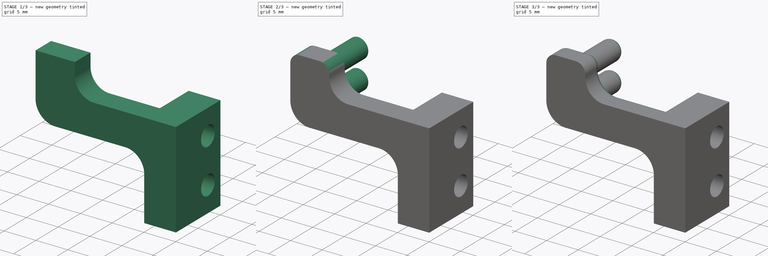
[diagram: build sequence overview — one tinted view per stage of 3, left to right]
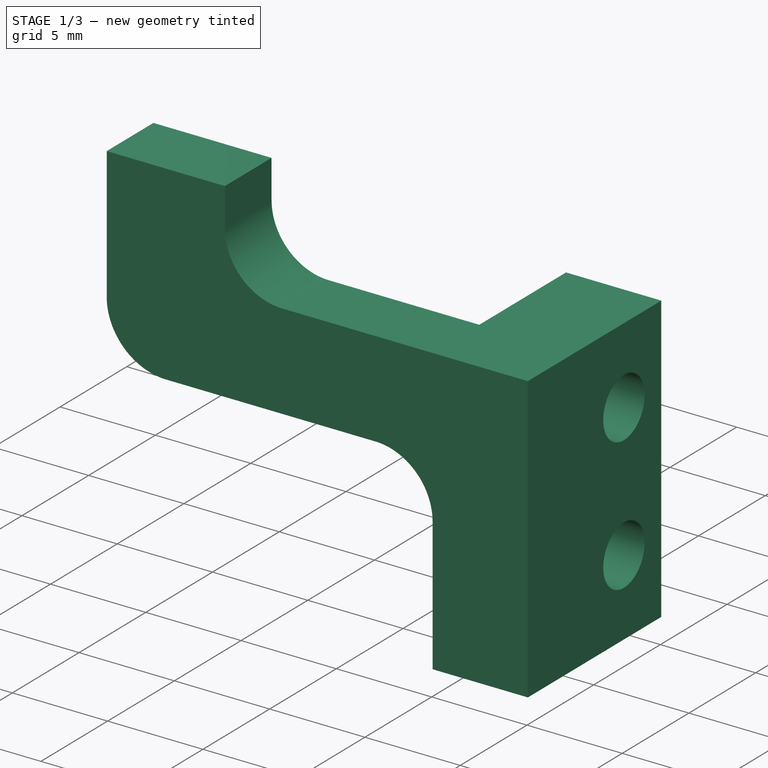
[diagram: stage 1 of 3 — iso view after this stage's code; geometry added in this stage tinted green]
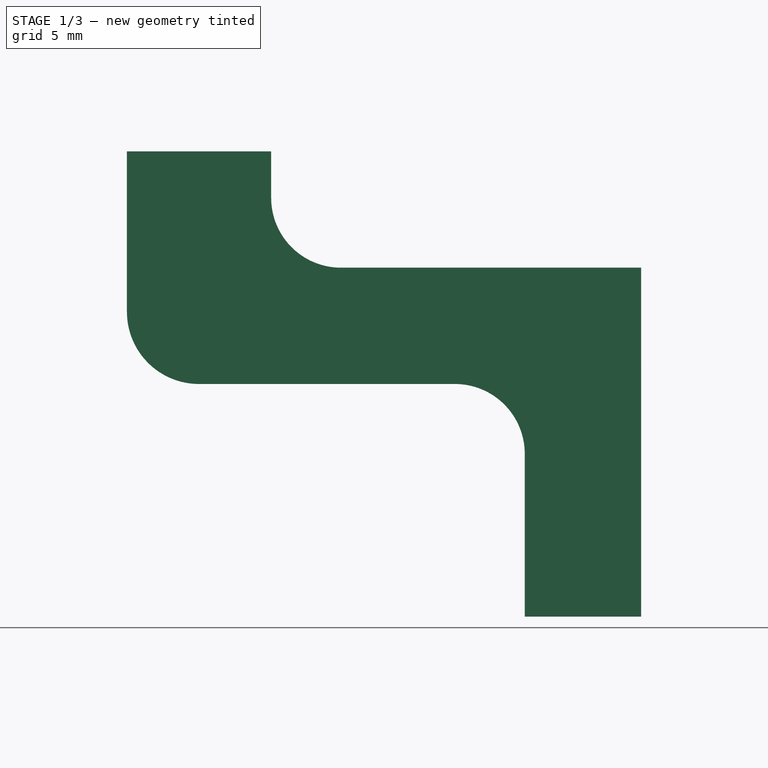
[diagram: stage 1 of 3 — front view after this stage's code; geometry added in this stage tinted green]
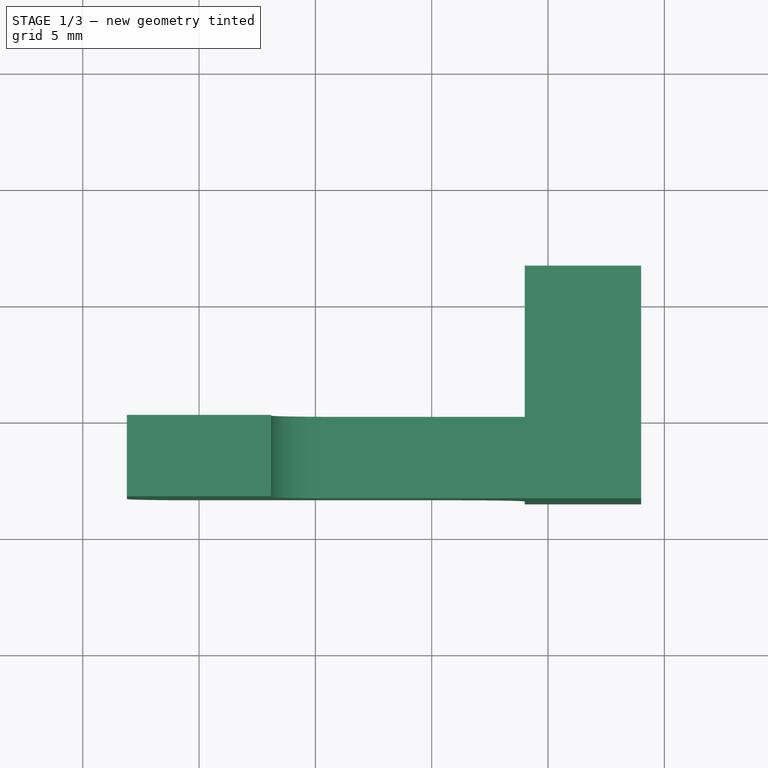
[diagram: stage 1 of 3 — top view after this stage's code; geometry added in this stage tinted green]
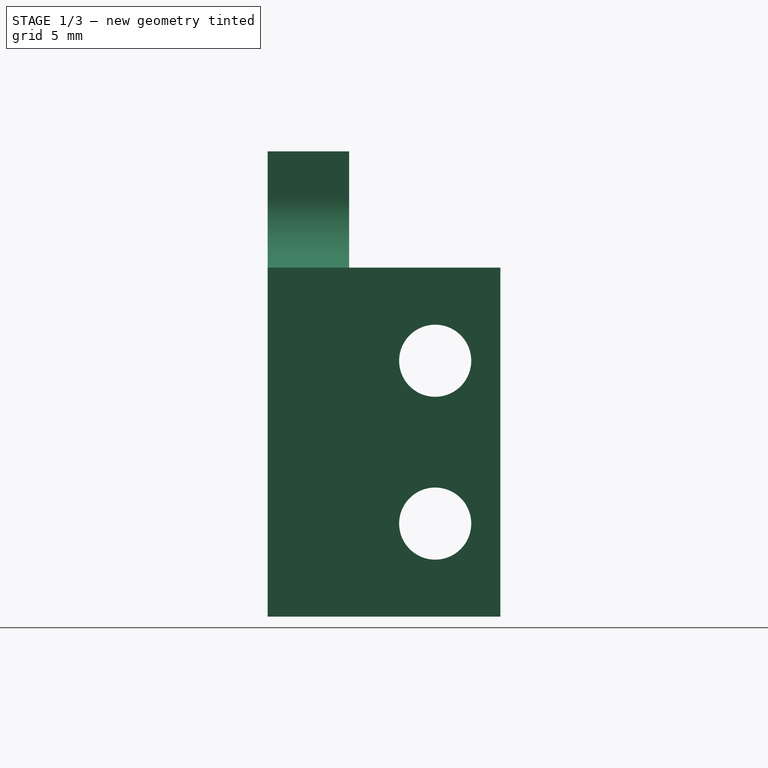
[diagram: stage 1 of 3 — right view after this stage's code; geometry added in this stage tinted green]
FCSTD DOCUMENT  (FreeCAD 0.19R24291 (Git))
Label: ri_tube-support02
License: All rights reserved
LicenseURL: http://en.wikipedia.org/wiki/All_rights_reserved
objects: Sketcher::SketchObject×4, PartDesign::Pad×3, PartDesign::Fillet×3, PartDesign::Pocket×1, PartDesign::Body×1, App::Part×1
note: 19 computed .brp shape members not serialized (recipe doc carries the construction recipe); baked Part::Feature solids carry a one-line shape summary decoded from their .brp

FEATURE [Sketcher::SketchObject] Sketch
  FullyConstrained = true
  MapMode = 5
  Placement = pos=(0,0,0) rot=(1,0,0;1.5708rad)
  Support = -> [XZ_Plane001]
  sketch-geometry (17):
    g0: LineSegment StartX=14 StartY=-8 StartZ=0 EndX=14 EndY=-15 EndZ=0
    g1: LineSegment StartX=14 StartY=-15 StartZ=0 EndX=19 EndY=-15 EndZ=0
    g2: LineSegment StartX=19 StartY=-15 StartZ=0 EndX=19 EndY=0 EndZ=0
    g3: LineSegment StartX=11 StartY=-5 StartZ=0 EndX=0 EndY=-5 EndZ=0
    g4: LineSegment StartX=-3.1 StartY=-1.9 StartZ=0 EndX=-3.1 EndY=5 EndZ=0
    g5: LineSegment StartX=-3.1 StartY=5 StartZ=0 EndX=3.1 EndY=5 EndZ=0
    g6: LineSegment StartX=3.1 StartY=5 StartZ=0 EndX=3.1 EndY=3 EndZ=0
    g7: LineSegment StartX=6.1 StartY=1.64e-14 StartZ=0 EndX=19 EndY=0 EndZ=0
    g8: GeomPoint X=0 Y=5 Z=0
    g9: GeomPoint X=0 Y=-5 Z=0
    g10: ArcOfCircle CenterX=11 CenterY=-8 CenterZ=0 NormalX=0 NormalY=0 NormalZ=1 AngleXU=0 Radius=3 StartAngle=0 EndAngle=1.5708
    g11: GeomPoint X=14 Y=-5 Z=0
    g12: ArcOfCircle CenterX=4e-16 CenterY=-1.9 CenterZ=0 NormalX=0 NormalY=0 NormalZ=1 AngleXU=0 Radius=3.1 StartAngle=3.14159 EndAngle=4.71239
    g13: GeomPoint X=-3.1 Y=-5 Z=0
    g14: GeomPoint X=3.1 Y=0 Z=0
    g15: ArcOfCircle CenterX=6.1 CenterY=3 CenterZ=0 NormalX=0 NormalY=0 NormalZ=1 AngleXU=0 Radius=3 StartAngle=3.14159 EndAngle=4.71239
    g16: GeomPoint X=3.1 Y=0 Z=0
  constraints (39):
    c: Vertical(g0)
    c: Coincident(g0,g1)
    c: Horizontal(g1)
    c: Coincident(g1,g2)
    c: PointOnObject(g2,g-1)
    c: Vertical(g2)
    c: DistanceY(g2,g2) = 15
    c: DistanceX(g1,g1) = 5
    c: DistanceX(g-1,g2) = 19
    c: Horizontal(g3)
    c: Vertical(g4)
    c: Coincident(g4,g5)
    c: Horizontal(g5)
    c: Coincident(g5,g6)
    c: PointOnObject(g14,g-1)
    c: Vertical(g6)
    c: Coincident(g7,g2)
    c: Vertical(g8,g9)
    c: Symmetric(g4,g5,g8)
    c: Symmetric(g8,g9,g-1)
    c: DistanceX(g5,g5) = 6.2
    c: DistanceY(g13,g4) = 10
    c: PointOnObject(g11,g3)
    c: PointOnObject(g11,g0)
    c: Tangent(g3,g10) = -1.5708
    c: Tangent(g0,g10) = 1.5708
    c: Radius(g10) = 3
    c: PointOnObject(g13,g4)
    c: Tangent(g3,g12) = 1.5708
    c: Tangent(g4,g12) = 1.5708
    c: PointOnObject(g14,g6)
    c: PointOnObject(g14,g7)
    c: Coincident(g3,g9)
    c: Horizontal(g13,g3)
    c: PointOnObject(g16,g6)
    c: PointOnObject(g16,g7)
    c: Tangent(g6,g15) = -1.5708
    c: Tangent(g7,g15) = -1.5708
    c: Radius(g15) = 3
FEATURE [PartDesign::Pad] Pad
  Direction = (1,1,1)
  Length = 3.5
  Length2 = 100
  Placement = pos=(0,0,0) rot=(1,0,0;1.5708rad)
  Profile = -> Sketch
  Refine = true
  Type = 0
FEATURE [Sketcher::SketchObject] Sketch001
  ExternalGeometry = -> [Pad]
  FullyConstrained = true
  MapMode = 5
  Placement = pos=(19,0,0) rot=(0.707107,0,0.707107;3.14159rad)
  Support = -> [Pad]
  expr: Constraints[17] = 5.6 / 2
  sketch-geometry (9):
    g0: Circle CenterX=-4 CenterY=-3.7 CenterZ=0 NormalX=0 NormalY=0 NormalZ=1 AngleXU=0 Radius=1.55
    g1: Circle CenterX=-11 CenterY=-3.7 CenterZ=0 NormalX=0 NormalY=0 NormalZ=1 AngleXU=0 Radius=1.55
    g2: GeomPoint X=-7.5 Y=-3.7 Z=0
    g3: GeomPoint X=-15 Y=-3.7 Z=0
    g4: LineSegment StartX=-15 StartY=0 StartZ=0 EndX=0 EndY=0 EndZ=0
    g5: LineSegment StartX=0 StartY=0 StartZ=0 EndX=0 EndY=-6.5 EndZ=0
    g6: LineSegment StartX=0 StartY=-6.5 StartZ=0 EndX=-15 EndY=-6.5 EndZ=0
    g7: LineSegment StartX=-15 StartY=-6.5 StartZ=0 EndX=-15 EndY=0 EndZ=0
    g8: GeomPoint X=-7.5 Y=-6.5 Z=0
  constraints (21):
    c: Equal(g0,g1)
    c: Horizontal(g0,g1)
    c: Diameter(g0) = 3.1
    c: Symmetric(g0,g1,g2)
    c: DistanceX(g1,g0) = 7
    c: Horizontal(g2,g3)
    c: Coincident(g4,g5)
    c: Coincident(g5,g6)
    c: Coincident(g6,g7)
    c: Coincident(g7,g4)
    c: Horizontal(g4)
    c: Horizontal(g6)
    c: Vertical(g5)
    c: Vertical(g7)
    c: Coincident(g4,g-3)
    c: PointOnObject(g5,g-2)
    c: DistanceY(g5,g-4) = 10
    c: DistanceY(g6,g3) = 2.8
    c: Symmetric(g6,g5,g8)
    c: Vertical(g2,g8)
    c: PointOnObject(g3,g7)
FEATURE [PartDesign::Pad] Pad001
  BaseFeature = -> Pad
  Direction = (1,1,1)
  Length = 10
  Length2 = 100
  Placement = pos=(0,0,0) rot=(1,0,0;1.5708rad)
  Profile = -> Sketch001
  Refine = true
  Type = 3
  UpToFace = -> Pad [Face2]
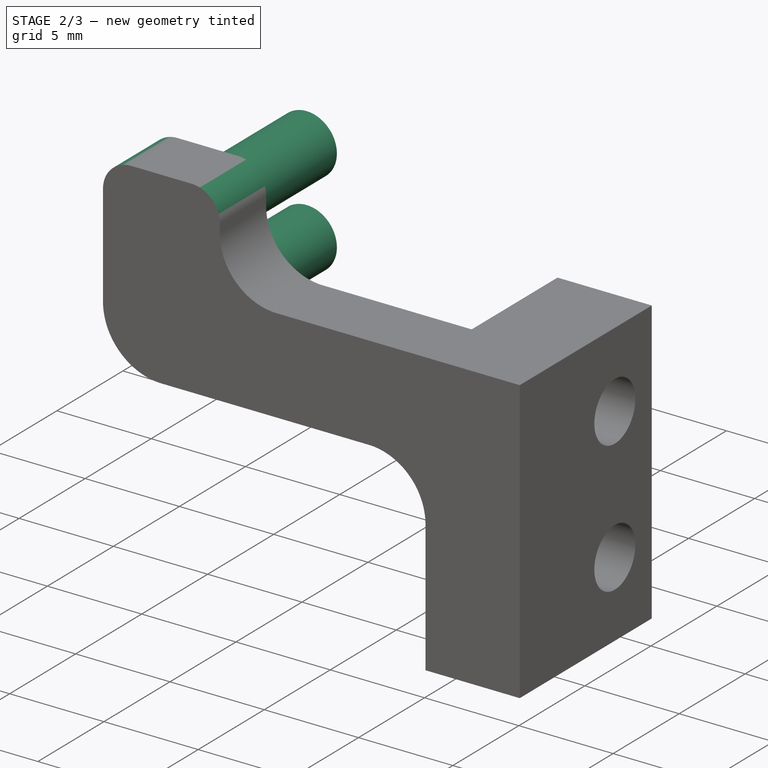
[diagram: stage 2 of 3 — iso view after this stage's code; geometry added in this stage tinted green]
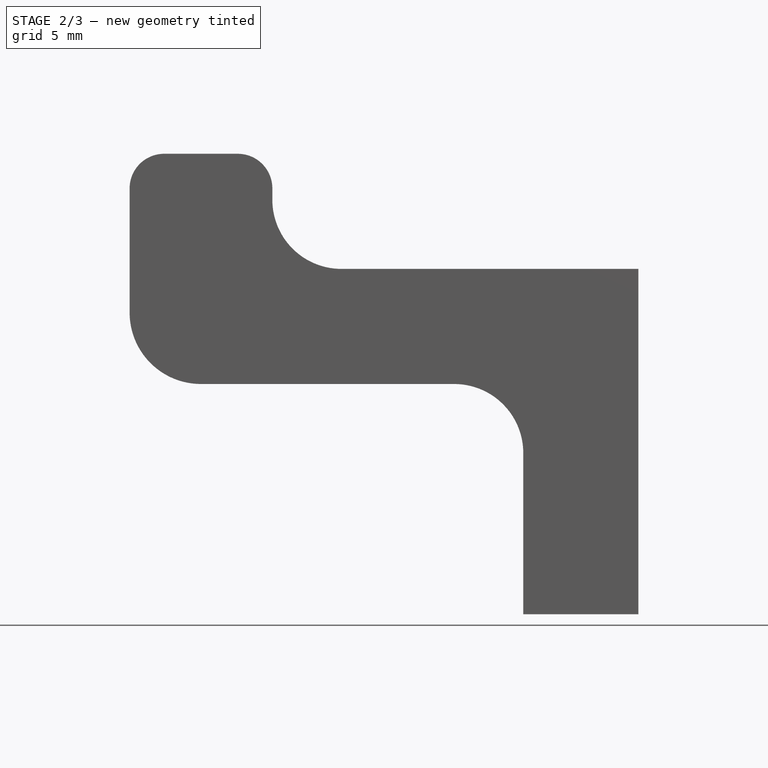
[diagram: stage 2 of 3 — front view after this stage's code; geometry added in this stage tinted green]
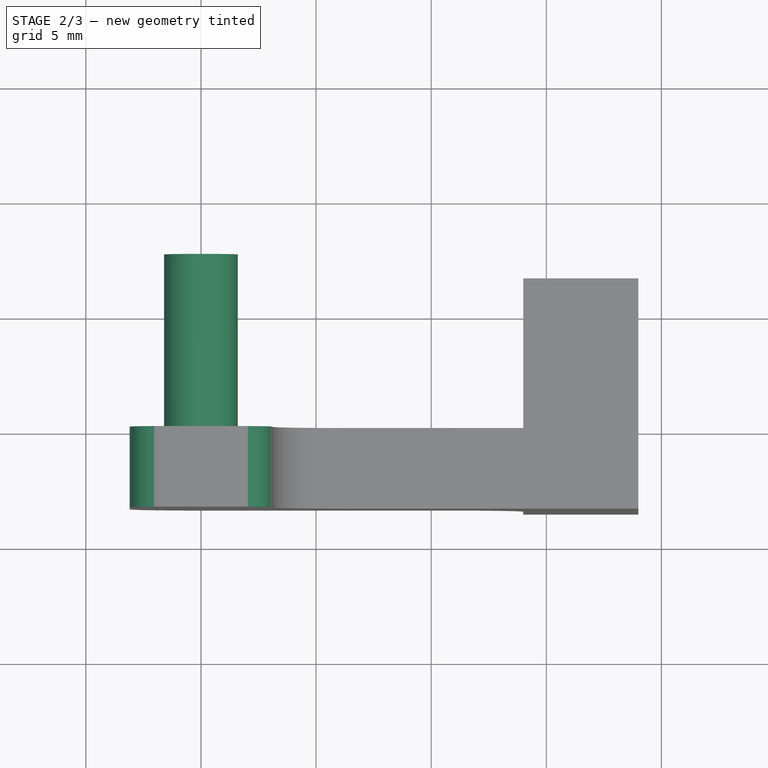
[diagram: stage 2 of 3 — top view after this stage's code; geometry added in this stage tinted green]
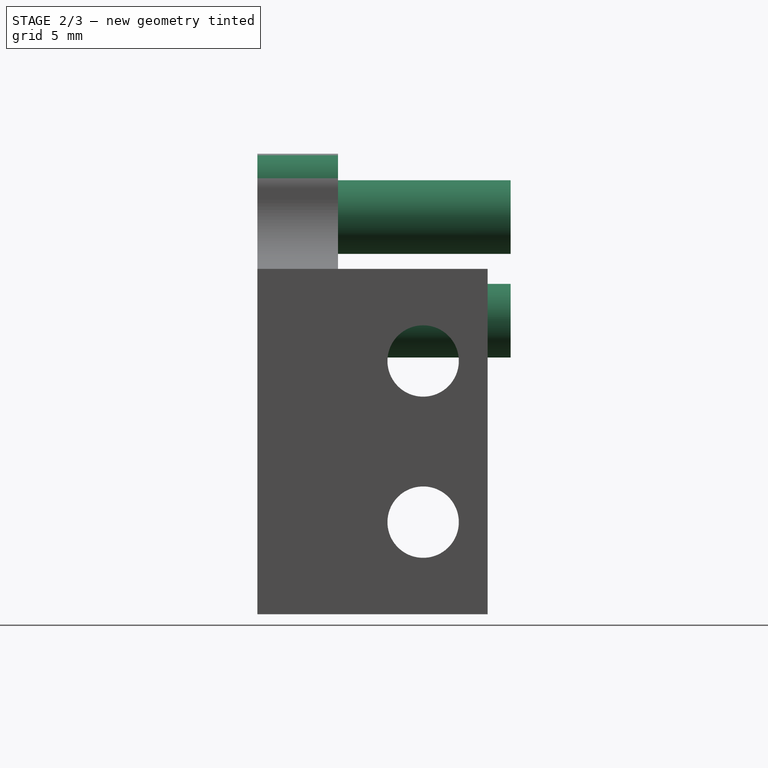
[diagram: stage 2 of 3 — right view after this stage's code; geometry added in this stage tinted green]
FEATURE [Sketcher::SketchObject] Sketch002
  ExternalGeometry = -> [Pad001]
  FullyConstrained = true
  MapMode = 5
  Placement = pos=(14,0,0) rot=(0.707107,0,-0.707107;3.14159rad)
  Support = -> [Pad001]
  sketch-geometry (8):
    g0: LineSegment StartX=1.2 StartY=-0.9 StartZ=0 EndX=6.8 EndY=-0.9 EndZ=0
    g1: LineSegment StartX=6.8 StartY=-0.9 StartZ=0 EndX=6.8 EndY=-6.5 EndZ=0
    g2: LineSegment StartX=6.8 StartY=-6.5 StartZ=0 EndX=1.2 EndY=-6.5 EndZ=0
    g3: LineSegment StartX=1.2 StartY=-6.5 StartZ=0 EndX=1.2 EndY=-0.9 EndZ=0
    g4: LineSegment StartX=8.2 StartY=-0.9 StartZ=0 EndX=13.8 EndY=-0.9 EndZ=0
    g5: LineSegment StartX=13.8 StartY=-0.9 StartZ=0 EndX=13.8 EndY=-6.5 EndZ=0
    g6: LineSegment StartX=13.8 StartY=-6.5 StartZ=0 EndX=8.2 EndY=-6.5 EndZ=0
    g7: LineSegment StartX=8.2 StartY=-6.5 StartZ=0 EndX=8.2 EndY=-0.9 EndZ=0
  constraints (22):
    c: Coincident(g0,g1)
    c: Coincident(g1,g2)
    c: Coincident(g2,g3)
    c: Coincident(g3,g0)
    c: Horizontal(g0)
    c: Horizontal(g2)
    c: Vertical(g1)
    c: Vertical(g3)
    c: Coincident(g4,g5)
    c: Coincident(g5,g6)
    c: Coincident(g6,g7)
    c: Coincident(g7,g4)
    c: Horizontal(g4)
    c: Horizontal(g6)
    c: Vertical(g5)
    c: Vertical(g7)
    c: Equal(g3,g0)
    c: Equal(g7,g4)
    c: Equal(g4,g0)
    c: Symmetric(g2,g0,g-3)
    c: Symmetric(g6,g4,g-4)
    c: DistanceX(g0,g0) = 5.6
FEATURE [PartDesign::Pocket] Pocket
  BaseFeature = -> Pad001
  Length = 2
  Length2 = 100
  Placement = pos=(0,0,0) rot=(1,0,0;1.5708rad)
  Profile = -> Sketch002
  Refine = true
  Type = 0
FEATURE [Sketcher::SketchObject] Sketch003
  FullyConstrained = true
  MapMode = 5
  Placement = pos=(0,0,0) rot=(-1,0,0;1.5708rad)
  Support = -> [Pocket]
  sketch-geometry (2):
    g0: Circle CenterX=0 CenterY=2.25 CenterZ=0 NormalX=0 NormalY=0 NormalZ=1 AngleXU=0 Radius=1.6
    g1: Circle CenterX=0 CenterY=-2.25 CenterZ=0 NormalX=0 NormalY=0 NormalZ=1 AngleXU=0 Radius=1.6
  constraints (5):
    c: PointOnObject(g0,g-2)
    c: Equal(g1,g0)
    c: Symmetric(g0,g1,g-1)
    c: Diameter(g0) = 3.2
    c: DistanceY(g1,g0) = 4.5
FEATURE [PartDesign::Pad] Pad002
  BaseFeature = -> Pocket
  Direction = (1,1,1)
  Length = 7.5
  Length2 = 100
  Placement = pos=(0,0,0) rot=(1,0,0;1.5708rad)
  Profile = -> Sketch003
  Refine = true
  Type = 0
FEATURE [PartDesign::Fillet] Fillet
  Base = -> Pad002 [Edge61,Edge62]
  BaseFeature = -> Pad002
  Placement = pos=(0,0,0) rot=(1,0,0;1.5708rad)
  Radius = 1.5
  Refine = true
  SupportTransform = false
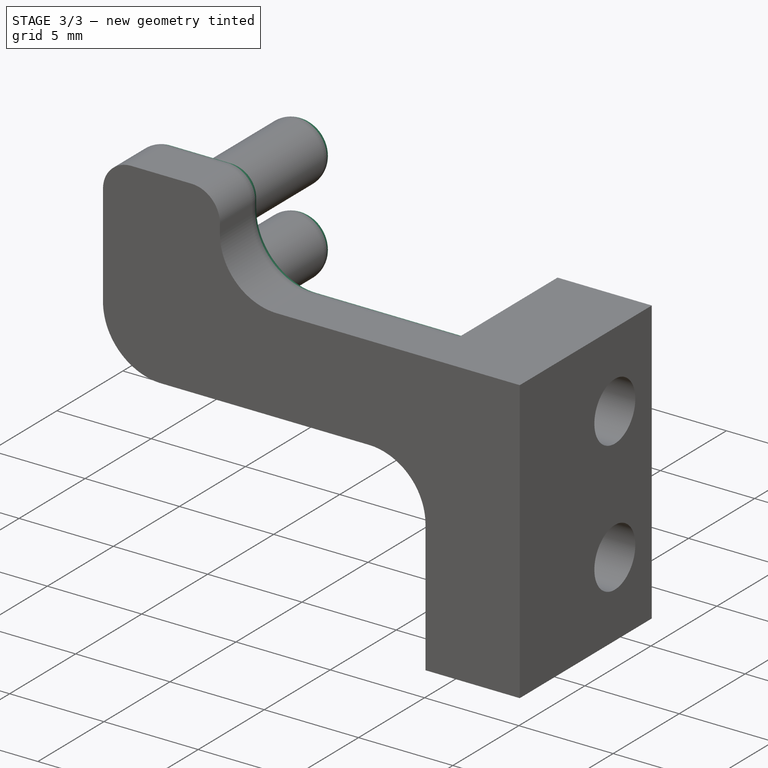
[diagram: stage 3 of 3 — iso view after this stage's code; geometry added in this stage tinted green]
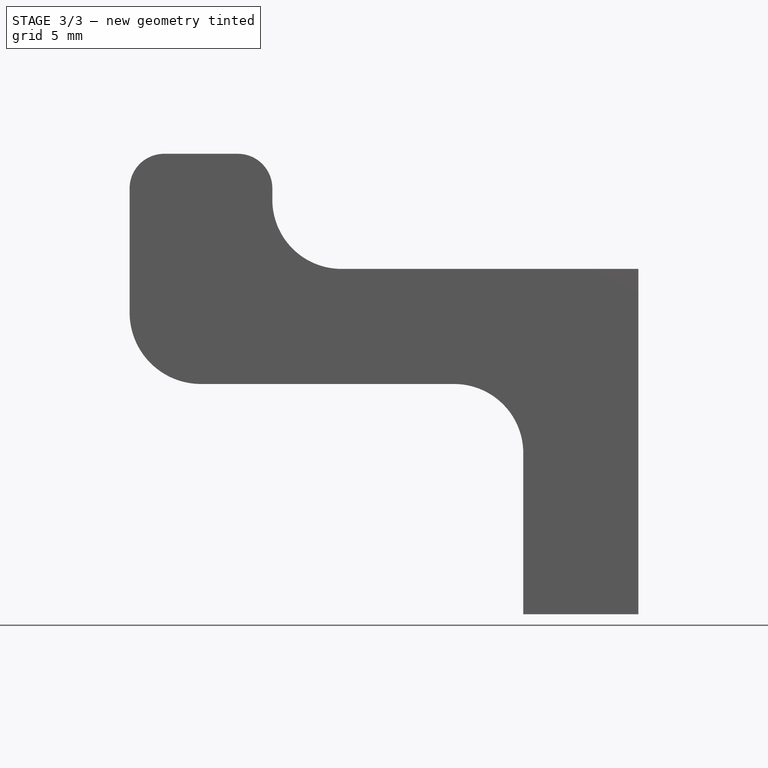
[diagram: stage 3 of 3 — front view after this stage's code; geometry added in this stage tinted green]
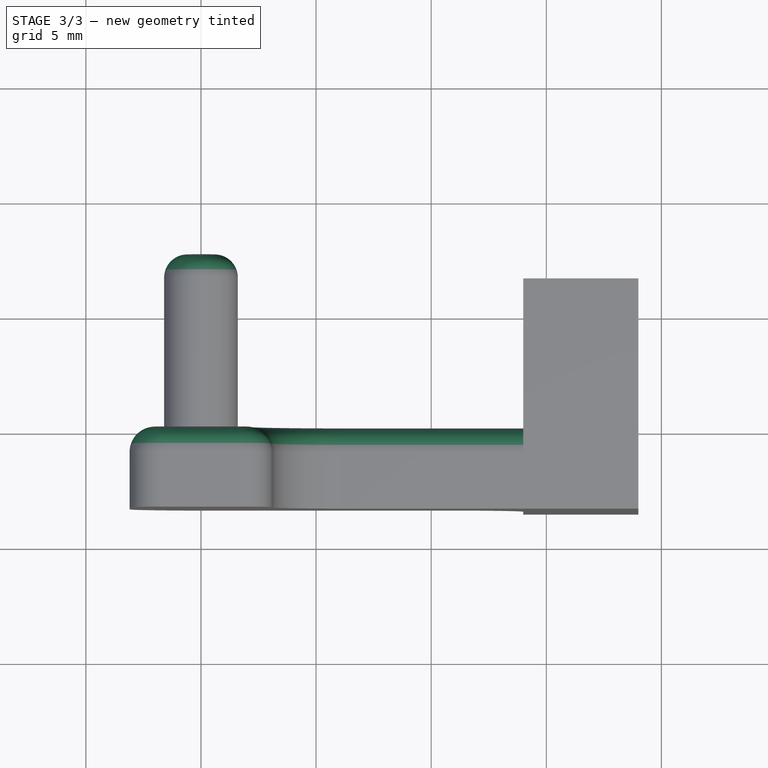
[diagram: stage 3 of 3 — top view after this stage's code; geometry added in this stage tinted green]
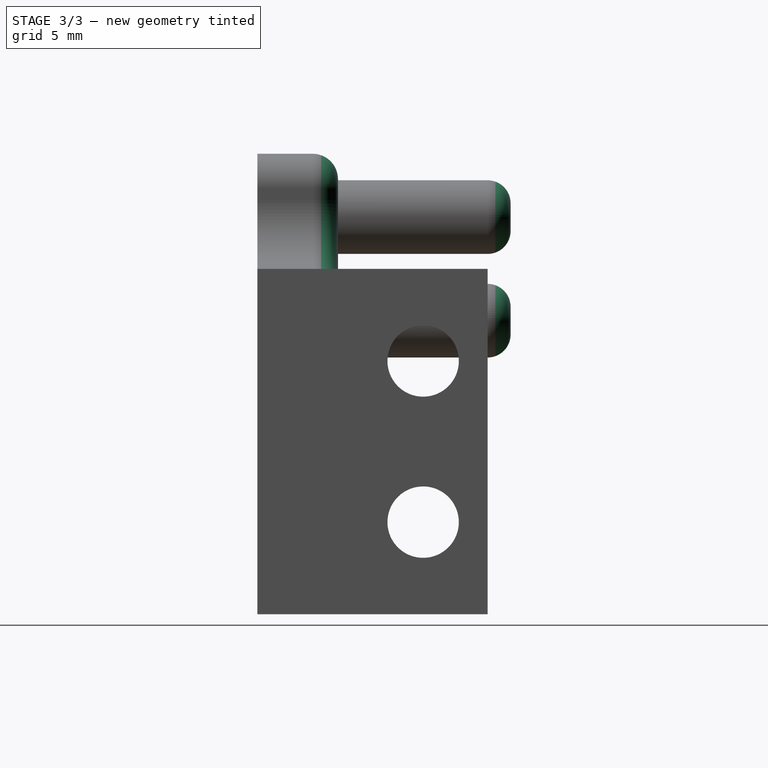
[diagram: stage 3 of 3 — right view after this stage's code; geometry added in this stage tinted green]
FEATURE [PartDesign::Fillet] Fillet001
  Base = -> Fillet [Edge11,Edge10,Edge8,Edge6,Edge4,Edge2,Edge1,Edge3,Edge5,Edge7]
  BaseFeature = -> Fillet
  Placement = pos=(0,0,0) rot=(1,0,0;1.5708rad)
  Radius = 1.1
  Refine = true
  SupportTransform = false
FEATURE [PartDesign::Fillet] Fillet002
  Base = -> Fillet001 [Edge51,Edge53]
  BaseFeature = -> Fillet001
  Placement = pos=(0,0,0) rot=(1,0,0;1.5708rad)
  Radius = 1
  Refine = true
  SupportTransform = false
FEATURE [PartDesign::Body] Body
  Group = -> [Sketch,Pad,Sketch001,Pad001,Sketch002,Pocket,Sketch003,Pad002,Fillet,Fillet001,Fillet002]
  Origin = -> Origin001
  Tip = -> Fillet002
FEATURE [App::Part] Part
  Group = -> [Body]
  Origin = -> Origin
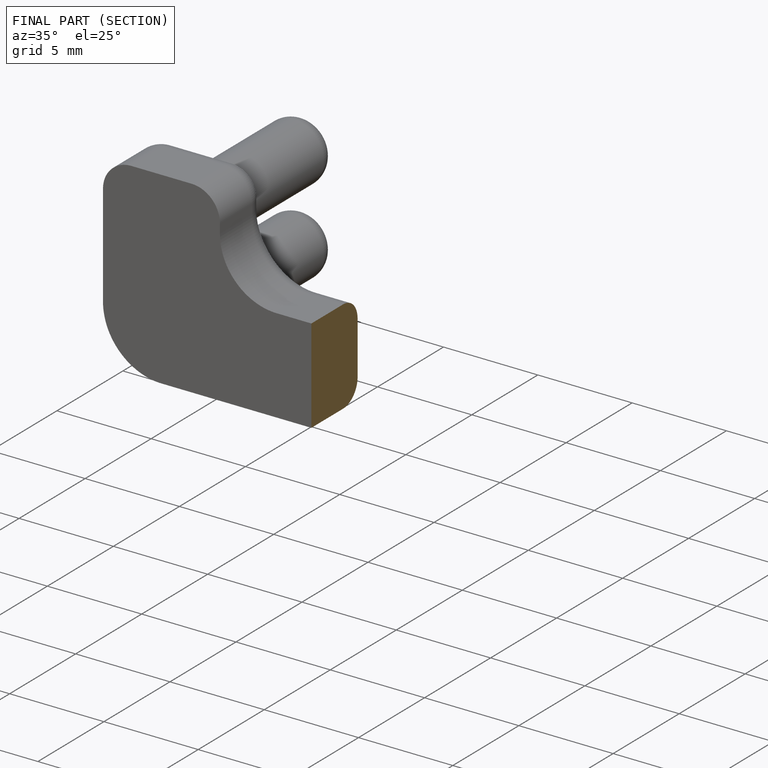
[diagram: finished part — half-section view (interior)]
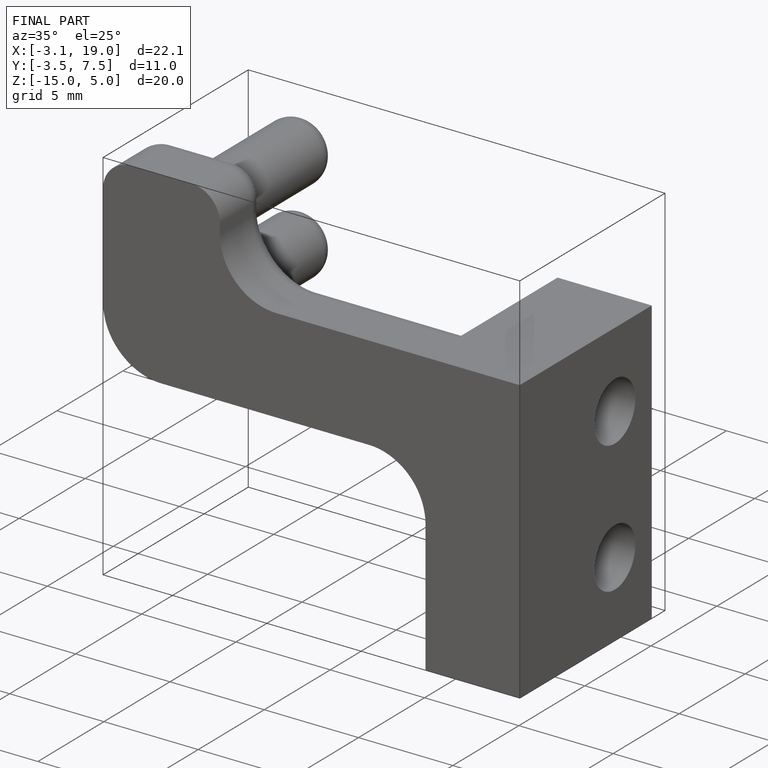
[diagram: finished part — iso view with bounding-box wireframe]
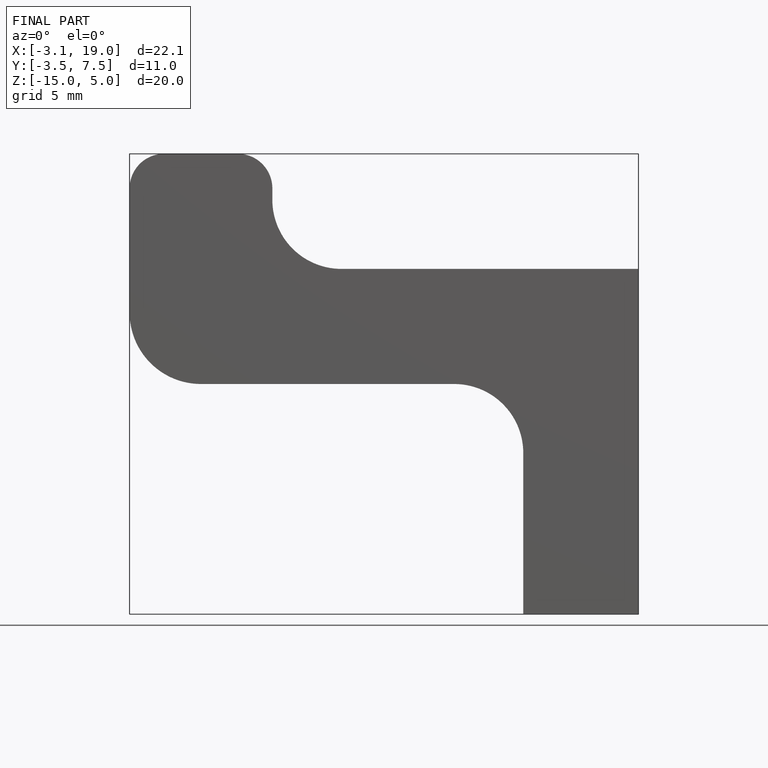
[diagram: finished part — front view with bounding-box wireframe]
